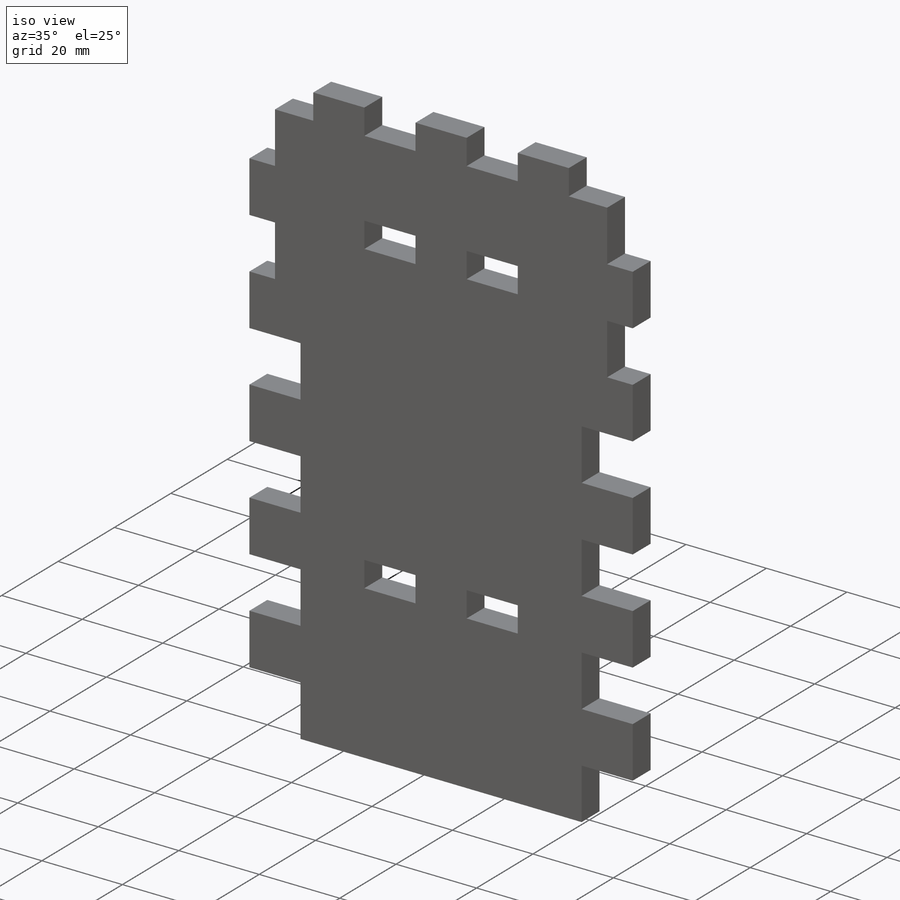
[diagram: iso view]
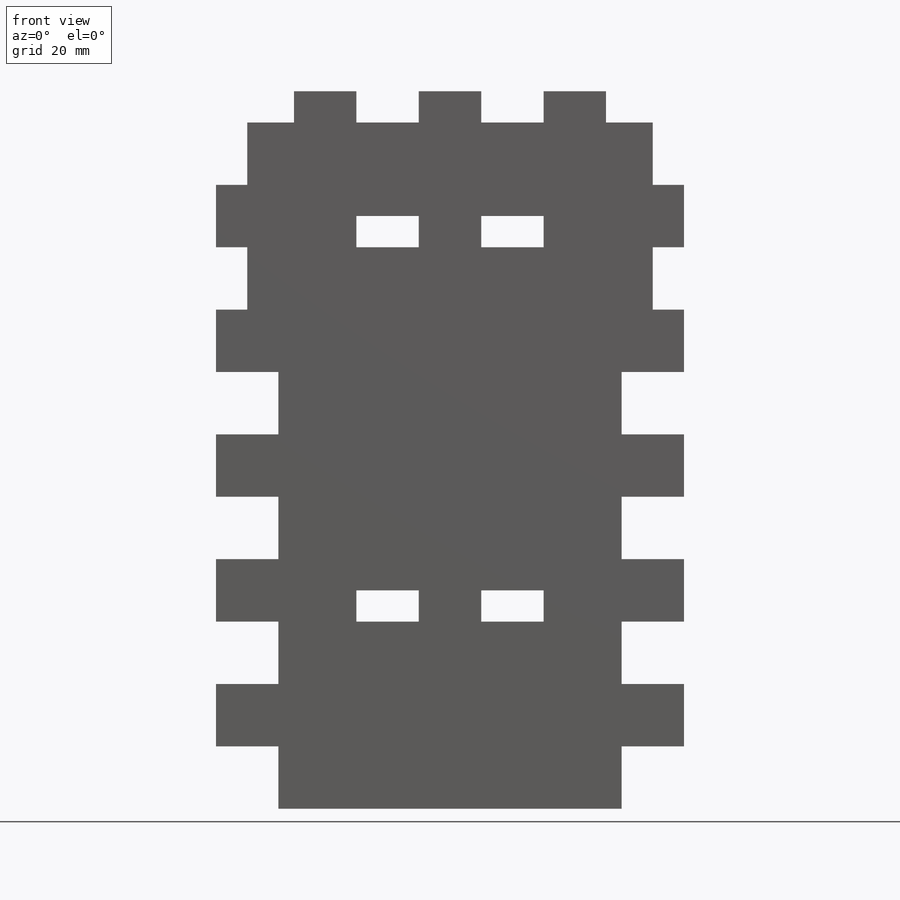
[diagram: front view]
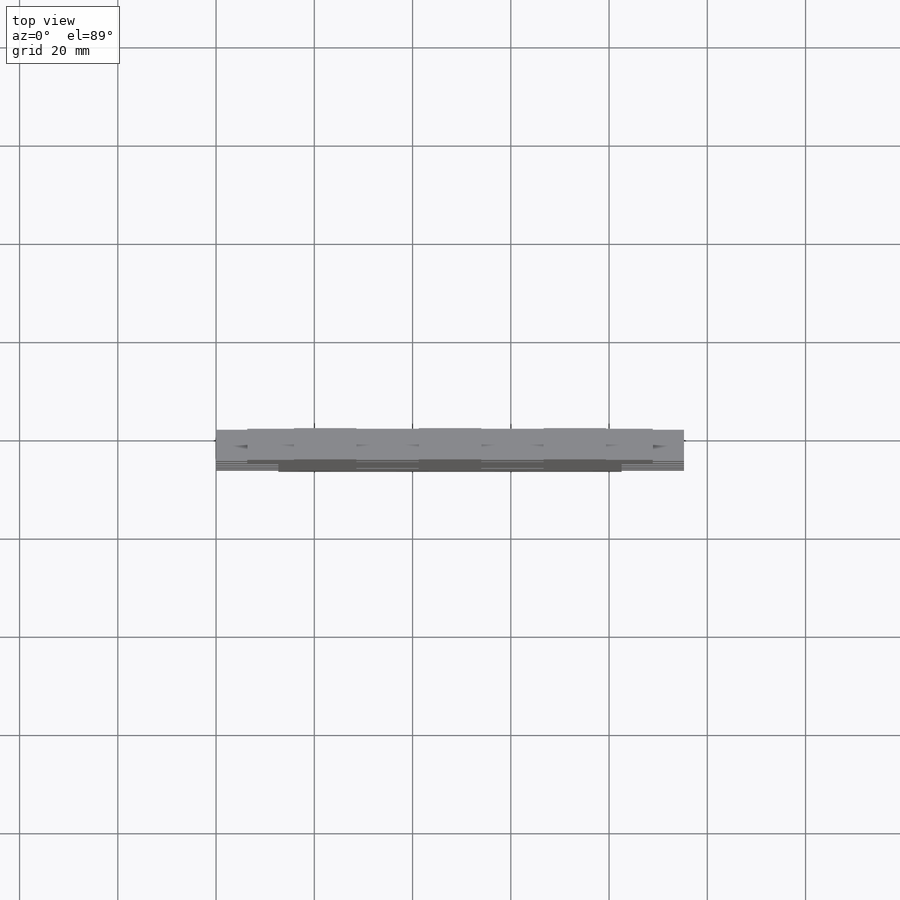
[diagram: top view]
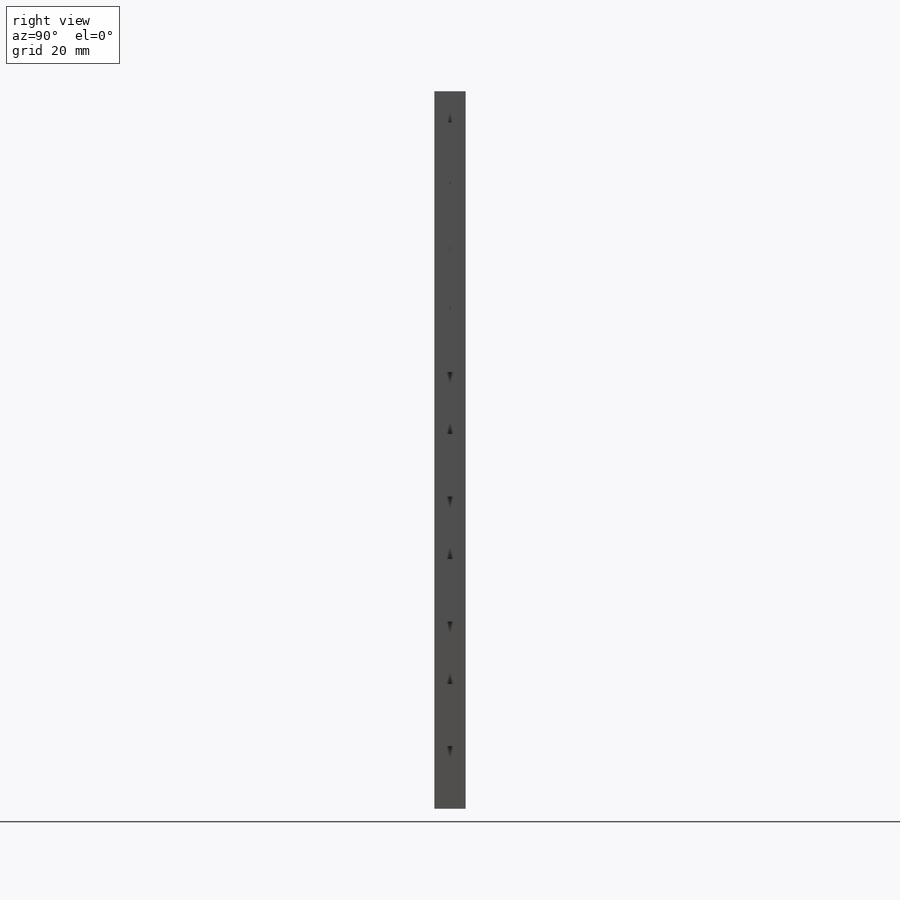
[diagram: right view]
SOLIDWORKS PART (.sldprt)
format: sldprt  version: not decoded by parser v0  size: 629,760 bytes
history: native  units: mm
features: sketch x7, cut_extrude x4, pattern_linear x4, extrude x2, material x1 (+13 scaffold rows collapsed)
feature tree (31):
  scaffold x13  (default folders/planes/origin — collapsed)
  material  "Material <not specified>"
  sketch  "Sketch1"  dims[D1=95.25mm D2=177.8mm]
  extrude  "Boss-Extrude1"  Depth=6.35mm
  sketch  "Sketch2"  dims[D1=12.7mm D2=12.7mm]
  cut_extrude  "Cut-Extrude1"  [1 undecoded]
  pattern_linear  "LPattern1"  Count1=4 Count2=1 Spacing1=25.4mm Spacing2=2.54mm
  sketch  "Sketch3"  dims[D1=12.7mm D2=6.35mm D3=38.1mm]
  cut_extrude  "Cut-Extrude2"  [1 undecoded]
  sketch  "Sketch4"  dims[D4=3.5mm D1=44.45mm D2=64.0mm D3=99.25mm D5=12.7mm]
  sketch  "Sketch5"  dims[D1=12.7mm D2=6.35mm]
  cut_extrude  "Cut-Extrude4"  [1 undecoded]
  pattern_linear  "LPattern2"  Count1=4 Count2=1 Spacing1=25.4mm Spacing2=2.54mm
  sketch  "Sketch6"
  cut_extrude  "Cut-Extrude5"  [1 undecoded]
  sketch  "Sketch7"  dims[D1=12.7mm]
  extrude  "Boss-Extrude2"  Depth=6.35mm
  pattern_linear  "LPattern3"  Count1=2 Count2=2 Spacing1=25.4mm Spacing2=25.4mm
  pattern_linear  "LPattern4"  Count1=2 Count2=1 Spacing1=76.2mm Spacing2=2.54mm
decode coverage: 12 of 17 modeling features carry decoded parameters
note: 4 parameter values undecoded
summary: no parameter record found for 4 features
note: suppression state not decoded; provenance and decode notes live in map.json
